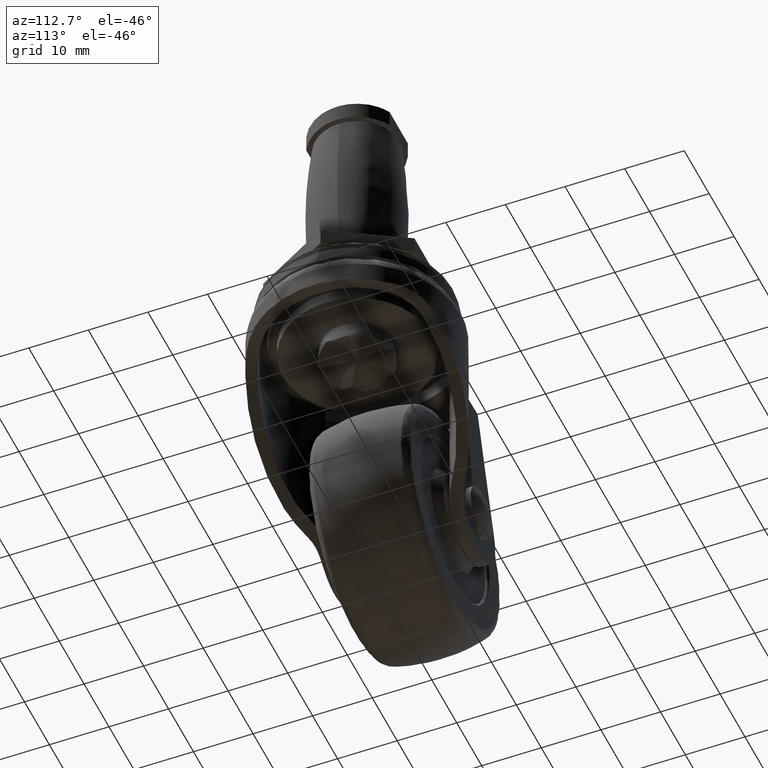
[diagram: clean part render]
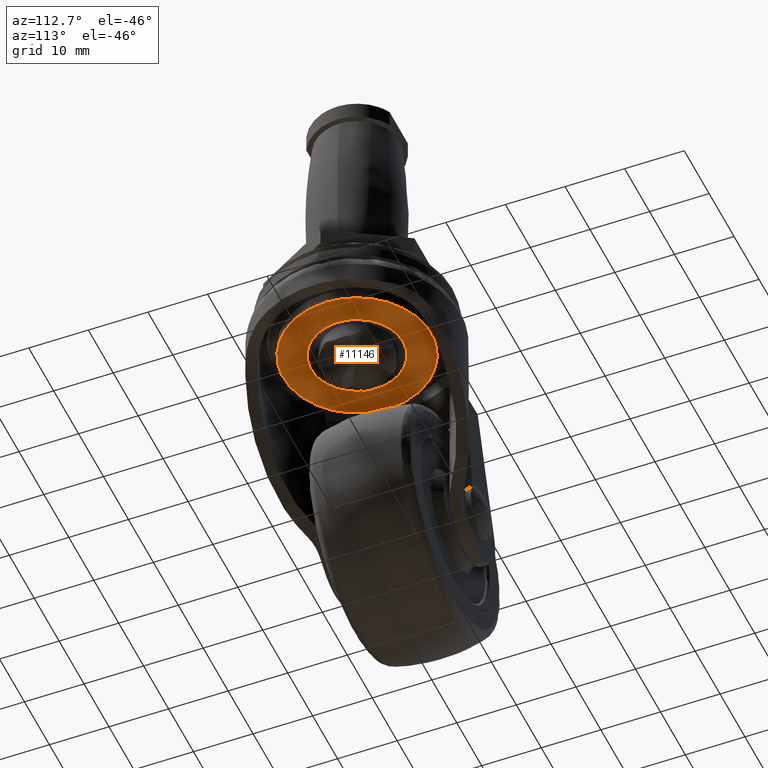
[diagram: same view with one face highlighted and labeled with its STEP entity id]
A machine part, auxiliary view. The second image highlights one B-rep face of the part: STEP entity #11146.
In plain terms, the highlighted face is a freeform B-spline surface patch.
Its self-contained STEP definition (entity closure, byte-faithful):
#5241=CARTESIAN_POINT('',(0.757586786037369,-12.386754226642280,-14.019925000143360));
#5242=VERTEX_POINT('',#5241);
#5248=CARTESIAN_POINT('',(12.409900000000000,0.0,-14.019925000143360));
#5249=VERTEX_POINT('',#5248);
#5250=CARTESIAN_POINT('',(12.409900000000000,0.0,-14.019925000143360));
#5251=CARTESIAN_POINT('',(12.409900000000002,-11.674086617682299,-14.019925000143365));
#5252=CARTESIAN_POINT('',(0.757586786037369,-12.386754226642285,-14.019925000143363));
#5260=(BOUNDED_CURVE()B_SPLINE_CURVE(2,(#5250,#5251,#5252),.UNSPECIFIED.,.F.,.U.)B_SPLINE_CURVE_WITH_KNOTS((3,3),(0.500000000000000,0.739333233663330),.UNSPECIFIED.)CURVE()GEOMETRIC_REPRESENTATION_ITEM()RATIONAL_B_SPLINE_CURVE((1.0,0.719603675293261,0.976072623381536))REPRESENTATION_ITEM(''));
#5261=EDGE_CURVE('',#5249,#5242,#5260,.T.);
#5263=CARTESIAN_POINT('',(-1.464783507693234,12.323150055302319,-14.019925000143360));
#5264=VERTEX_POINT('',#5263);
#5265=CARTESIAN_POINT('',(-1.464783507693234,12.323150055302319,-14.019925000143354));
#5266=CARTESIAN_POINT('',(-0.734960581548979,12.409899999999999,-14.019925000143356));
#5267=CARTESIAN_POINT('',(0.0,12.409900000000000,-14.019925000143360));
#5268=CARTESIAN_POINT('',(12.409900000000002,12.409900000000002,-14.019925000143360));
#5269=CARTESIAN_POINT('',(12.409900000000000,0.0,-14.019925000143360));
#5277=(BOUNDED_CURVE()B_SPLINE_CURVE(2,(#5265,#5266,#5267,#5268,#5269),.UNSPECIFIED.,.F.,.U.)B_SPLINE_CURVE_WITH_KNOTS((3,2,3),(0.229562604363339,0.250000000000000,0.500000000000000),.UNSPECIFIED.)CURVE()GEOMETRIC_REPRESENTATION_ITEM()RATIONAL_B_SPLINE_CURVE((0.956027010654883,0.976056101631257,1.0,0.707106781186548,1.0))REPRESENTATION_ITEM(''));
#5278=EDGE_CURVE('',#5264,#5249,#5277,.T.);
#5322=CARTESIAN_POINT('',(-12.409900000000000,0.0,-14.019925000143360));
#5323=VERTEX_POINT('',#5322);
#5324=CARTESIAN_POINT('',(-12.409900000000000,0.0,-14.019925000143360));
#5325=CARTESIAN_POINT('',(-12.409900000000000,11.022165643385030,-14.019925000143354));
#5326=CARTESIAN_POINT('',(-1.464783507693234,12.323150055302319,-14.019925000143354));
#5334=(BOUNDED_CURVE()B_SPLINE_CURVE(2,(#5324,#5325,#5326),.UNSPECIFIED.,.F.,.U.)B_SPLINE_CURVE_WITH_KNOTS((3,3),(0.0,0.229562604363339),.UNSPECIFIED.)CURVE()GEOMETRIC_REPRESENTATION_ITEM()RATIONAL_B_SPLINE_CURVE((1.0,0.731050679555290,0.956027010654883))REPRESENTATION_ITEM(''));
#5335=EDGE_CURVE('',#5323,#5264,#5334,.T.);
#5337=CARTESIAN_POINT('',(0.757586786037369,-12.386754226642285,-14.019925000143363));
#5338=CARTESIAN_POINT('',(0.379146967575554,-12.409900000000004,-14.019925000143358));
#5339=CARTESIAN_POINT('',(0.0,-12.409900000000000,-14.019925000143360));
#5340=CARTESIAN_POINT('',(-12.409900000000002,-12.409900000000002,-14.019925000143360));
#5341=CARTESIAN_POINT('',(-12.409900000000000,0.0,-14.019925000143360));
#5349=(BOUNDED_CURVE()B_SPLINE_CURVE(2,(#5337,#5338,#5339,#5340,#5341),.UNSPECIFIED.,.F.,.U.)B_SPLINE_CURVE_WITH_KNOTS((3,2,3),(0.739333233663330,0.750000000000000,1.0),.UNSPECIFIED.)CURVE()GEOMETRIC_REPRESENTATION_ITEM()RATIONAL_B_SPLINE_CURVE((0.976072623381536,0.987503105893286,1.0,0.707106781186548,1.0))REPRESENTATION_ITEM(''));
#5350=EDGE_CURVE('',#5242,#5323,#5349,.T.);
#5609=CARTESIAN_POINT('',(2.796649949696162,-7.209696213359754,-14.019925000143360));
#5610=VERTEX_POINT('',#5609);
#5624=CARTESIAN_POINT('',(-7.733108718879099,0.0,-14.019925000143360));
#5625=VERTEX_POINT('',#5624);
#5626=CARTESIAN_POINT('',(-7.733108718879099,0.0,-14.019925000143360));
#5627=CARTESIAN_POINT('',(-7.733108718879098,-7.733108718879098,-14.019925000143360));
#5628=CARTESIAN_POINT('',(0.0,-7.733108718879099,-14.019925000143360));
#5629=CARTESIAN_POINT('',(1.447305121923440,-7.733108718879100,-14.019925000143363));
#5630=CARTESIAN_POINT('',(2.796649949696162,-7.209696213359755,-14.019925000143363));
#5638=(BOUNDED_CURVE()B_SPLINE_CURVE(2,(#5626,#5627,#5628,#5629,#5630),.UNSPECIFIED.,.F.,.U.)B_SPLINE_CURVE_WITH_KNOTS((3,2,3),(0.0,0.250000000000000,0.311409344300921),.UNSPECIFIED.)CURVE()GEOMETRIC_REPRESENTATION_ITEM()RATIONAL_B_SPLINE_CURVE((1.0,0.707106781186547,1.0,0.928054477929918,0.891453974545526))REPRESENTATION_ITEM(''));
#5639=EDGE_CURVE('',#5625,#5610,#5638,.T.);
#5641=CARTESIAN_POINT('',(7.037948413724482,3.204411417219110,-14.019925000143360));
#5642=VERTEX_POINT('',#5641);
#5643=CARTESIAN_POINT('',(7.037948413724482,3.204411417219110,-14.019925000143354));
#5644=CARTESIAN_POINT('',(4.976010976700123,7.733108718879099,-14.019925000143360));
#5645=CARTESIAN_POINT('',(0.0,7.733108718879099,-14.019925000143360));
#5646=CARTESIAN_POINT('',(-7.733108718879098,7.733108718879098,-14.019925000143360));
#5647=CARTESIAN_POINT('',(-7.733108718879099,0.0,-14.019925000143360));
#5655=(BOUNDED_CURVE()B_SPLINE_CURVE(2,(#5643,#5644,#5645,#5646,#5647),.UNSPECIFIED.,.F.,.U.)B_SPLINE_CURVE_WITH_KNOTS((3,2,3),(0.570375489974372,0.750000000000000,1.0),.UNSPECIFIED.)CURVE()GEOMETRIC_REPRESENTATION_ITEM()RATIONAL_B_SPLINE_CURVE((0.881519651435760,0.789556796323218,1.0,0.707106781186547,1.0))REPRESENTATION_ITEM(''));
#5656=EDGE_CURVE('',#5642,#5625,#5655,.T.);
#5743=CARTESIAN_POINT('',(7.733108718879099,0.0,-14.019925000143360));
#5744=VERTEX_POINT('',#5743);
#5745=CARTESIAN_POINT('',(7.733108718879099,0.0,-14.019925000143360));
#5746=CARTESIAN_POINT('',(7.733108718879098,1.677609236481007,-14.019925000143356));
#5747=CARTESIAN_POINT('',(7.037948413724482,3.204411417219110,-14.019925000143365));
#5755=(BOUNDED_CURVE()B_SPLINE_CURVE(2,(#5745,#5746,#5747),.UNSPECIFIED.,.F.,.U.)B_SPLINE_CURVE_WITH_KNOTS((3,3),(0.500000000000000,0.570375489974372),.UNSPECIFIED.)CURVE()GEOMETRIC_REPRESENTATION_ITEM()RATIONAL_B_SPLINE_CURVE((1.0,0.917549984863329,0.881519651435759))REPRESENTATION_ITEM(''));
#5756=EDGE_CURVE('',#5744,#5642,#5755,.T.);
#5758=CARTESIAN_POINT('',(2.796649949696161,-7.209696213359754,-14.019925000143360));
#5759=CARTESIAN_POINT('',(7.733108718879098,-5.294837841049890,-14.019925000143363));
#5760=CARTESIAN_POINT('',(7.733108718879099,0.0,-14.019925000143360));
#5768=(BOUNDED_CURVE()B_SPLINE_CURVE(2,(#5758,#5759,#5760),.UNSPECIFIED.,.F.,.U.)B_SPLINE_CURVE_WITH_KNOTS((3,3),(0.311409344300921,0.500000000000000),.UNSPECIFIED.)CURVE()GEOMETRIC_REPRESENTATION_ITEM()RATIONAL_B_SPLINE_CURVE((0.891453974545527,0.779052303256629,1.0))REPRESENTATION_ITEM(''));
#5769=EDGE_CURVE('',#5610,#5744,#5768,.T.);
#11129=CARTESIAN_POINT('',(13.649648728903889,-13.649347148949410,-14.019925000143360));
#11130=CARTESIAN_POINT('',(-13.649649616529100,-13.649347148949410,-14.019925000143360));
#11131=CARTESIAN_POINT('',(13.649648728903889,13.649423262811810,-14.019925000143360));
#11132=CARTESIAN_POINT('',(-13.649649616529100,13.649423262811810,-14.019925000143360));
#11133=B_SPLINE_SURFACE_WITH_KNOTS('',1,1,((#11129,#11131),(#11130,#11132)),.UNSPECIFIED.,.F.,.F.,.U.,(2,2),(2,2),(0.0,27.299298345432991),(0.0,27.298770411761229),.UNSPECIFIED.);
#11134=ORIENTED_EDGE('',*,*,#5335,.T.);
#11135=ORIENTED_EDGE('',*,*,#5278,.T.);
#11136=ORIENTED_EDGE('',*,*,#5261,.T.);
#11137=ORIENTED_EDGE('',*,*,#5350,.T.);
#11138=EDGE_LOOP('',(#11134,#11135,#11136,#11137));
#11139=FACE_OUTER_BOUND('',#11138,.T.);
#11140=ORIENTED_EDGE('',*,*,#5756,.T.);
#11141=ORIENTED_EDGE('',*,*,#5656,.T.);
#11142=ORIENTED_EDGE('',*,*,#5639,.T.);
#11143=ORIENTED_EDGE('',*,*,#5769,.T.);
#11144=EDGE_LOOP('',(#11140,#11141,#11142,#11143));
#11145=FACE_BOUND('',#11144,.T.);
#11146=ADVANCED_FACE('',(#11139,#11145),#11133,.T.);